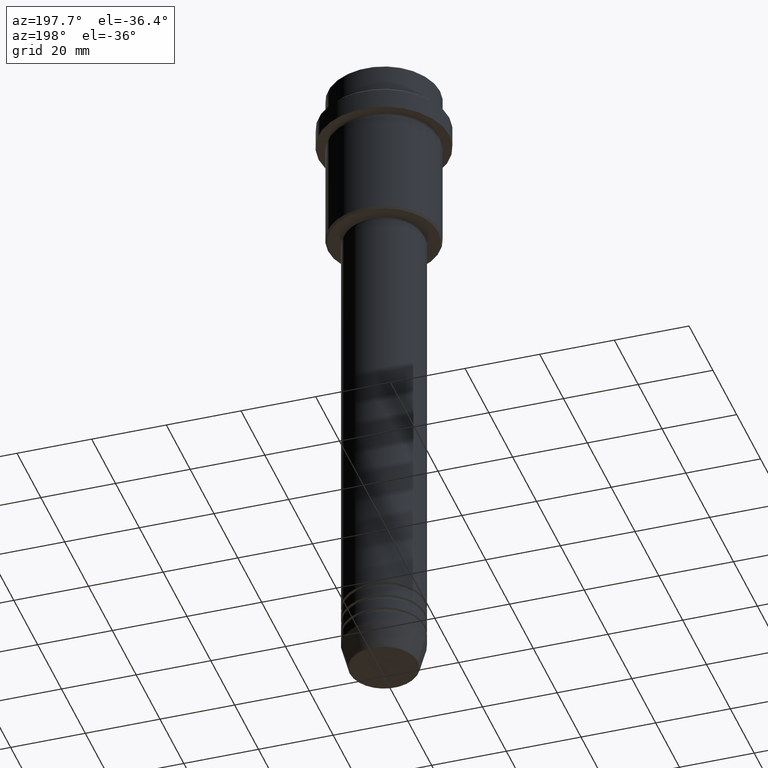
[diagram: clean part render]
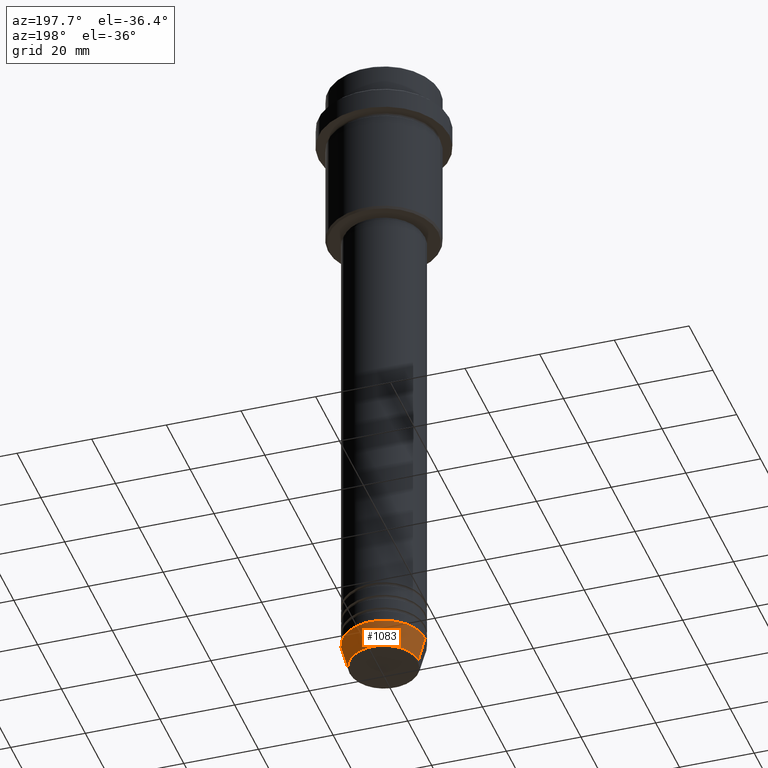
[diagram: same view with one face highlighted and labeled with its STEP entity id]
A machine part, auxiliary view. The second image highlights one B-rep face of the part: STEP entity #1083.
In plain terms, the highlighted conical surface has half-angle 15 deg.
Its self-contained STEP definition (entity closure, byte-faithful):
#83 = DIRECTION ( 'NONE',  ( -0.2588190451025213501, 3.169619151431772337E-17, 0.9659258262890680902 ) ) ;
#114 = CARTESIAN_POINT ( 'NONE',  ( -11.00000000000000000, 1.347111479062088405E-15, -173.0000000000000284 ) ) ;
#121 = ORIENTED_EDGE ( 'NONE', *, *, #852, .T. ) ;
#159 = DIRECTION ( 'NONE',  ( -0.000000000000000000, -0.000000000000000000, 1.000000000000000000 ) ) ;
#206 = ORIENTED_EDGE ( 'NONE', *, *, #706, .T. ) ;
#248 = VECTOR ( 'NONE', #83, 1000.000000000000000 ) ;
#259 = VERTEX_POINT ( 'NONE', #114 ) ;
#296 = EDGE_CURVE ( 'NONE', #992, #1136, #1214, .T. ) ;
#315 = DIRECTION ( 'NONE',  ( 0.2588190451025213501, 0.000000000000000000, 0.9659258262890680902 ) ) ;
#370 = VERTEX_POINT ( 'NONE', #1236 ) ;
#440 = EDGE_CURVE ( 'NONE', #1136, #259, #675, .T. ) ;
#578 = FACE_OUTER_BOUND ( 'NONE', #662, .T. ) ;
#599 = CARTESIAN_POINT ( 'NONE',  ( 9.223655072137194821, 0.000000000000000000, -179.6294095225512422 ) ) ;
#636 = CARTESIAN_POINT ( 'NONE',  ( 0.000000000000000000, 0.000000000000000000, -179.6294095225512422 ) ) ;
#655 = CARTESIAN_POINT ( 'NONE',  ( 11.00000000000000000, 0.000000000000000000, -173.0000000000000284 ) ) ;
#662 = EDGE_LOOP ( 'NONE', ( #206, #121, #1126, #1365 ) ) ;
#670 = AXIS2_PLACEMENT_3D ( 'NONE', #1152, #1184, #748 ) ;
#671 = VECTOR ( 'NONE', #315, 1000.000000000000000 ) ;
#675 = CIRCLE ( 'NONE', #997, 11.00000000000000000 ) ;
#706 = EDGE_CURVE ( 'NONE', #992, #370, #908, .T. ) ;
#748 = DIRECTION ( 'NONE',  ( 1.000000000000000000, 0.000000000000000000, 0.000000000000000000 ) ) ;
#852 = EDGE_CURVE ( 'NONE', #370, #259, #1172, .T. ) ;
#862 = DIRECTION ( 'NONE',  ( 1.000000000000000000, 0.000000000000000000, 0.000000000000000000 ) ) ;
#883 = AXIS2_PLACEMENT_3D ( 'NONE', #636, #1320, #862 ) ;
#908 = CIRCLE ( 'NONE', #883, 9.223655072137194821 ) ;
#926 = CARTESIAN_POINT ( 'NONE',  ( 0.000000000000000000, 0.000000000000000000, -173.0000000000000284 ) ) ;
#992 = VERTEX_POINT ( 'NONE', #599 ) ;
#997 = AXIS2_PLACEMENT_3D ( 'NONE', #926, #159, #1032 ) ;
#1032 = DIRECTION ( 'NONE',  ( 1.000000000000000000, 0.000000000000000000, 0.000000000000000000 ) ) ;
#1067 = CARTESIAN_POINT ( 'NONE',  ( -11.00000000000000000, 1.347111479062088405E-15, -173.0000000000000284 ) ) ;
#1074 = CONICAL_SURFACE ( 'NONE', #670, 11.00000000000000000, 0.2617993877991500740 ) ;
#1083 = ADVANCED_FACE ( 'NONE', ( #578 ), #1074, .T. ) ;
#1126 = ORIENTED_EDGE ( 'NONE', *, *, #440, .F. ) ;
#1136 = VERTEX_POINT ( 'NONE', #655 ) ;
#1152 = CARTESIAN_POINT ( 'NONE',  ( 0.000000000000000000, 0.000000000000000000, -173.0000000000000284 ) ) ;
#1172 = LINE ( 'NONE', #1067, #248 ) ;
#1184 = DIRECTION ( 'NONE',  ( -0.000000000000000000, -0.000000000000000000, 1.000000000000000000 ) ) ;
#1214 = LINE ( 'NONE', #1299, #671 ) ;
#1236 = CARTESIAN_POINT ( 'NONE',  ( -9.223655072137194821, 1.238341722557647596E-15, -179.6294095225512422 ) ) ;
#1299 = CARTESIAN_POINT ( 'NONE',  ( 11.00000000000000000, 0.000000000000000000, -173.0000000000000284 ) ) ;
#1320 = DIRECTION ( 'NONE',  ( -0.000000000000000000, -0.000000000000000000, 1.000000000000000000 ) ) ;
#1365 = ORIENTED_EDGE ( 'NONE', *, *, #296, .F. ) ;